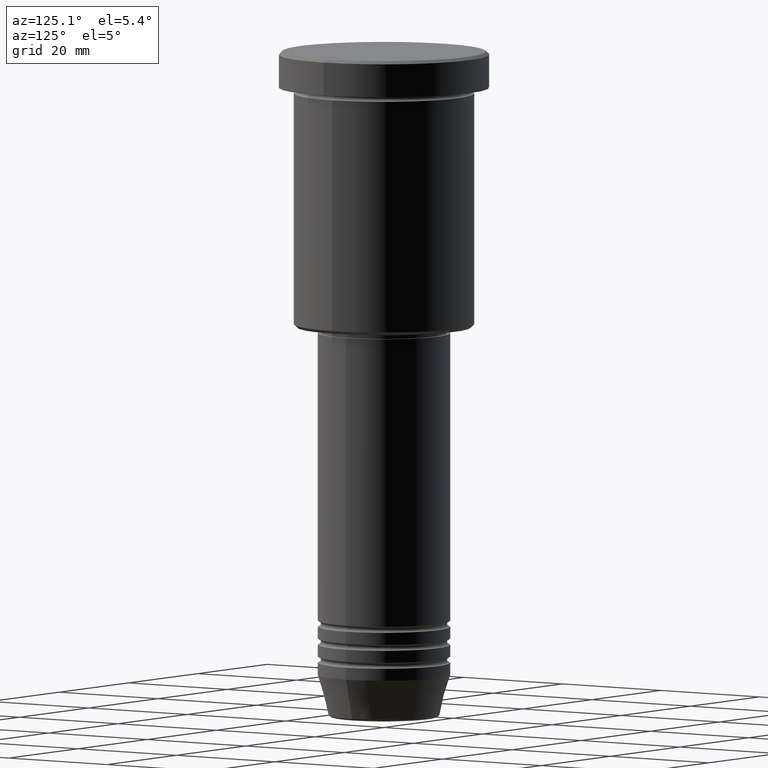
[diagram: clean part render]
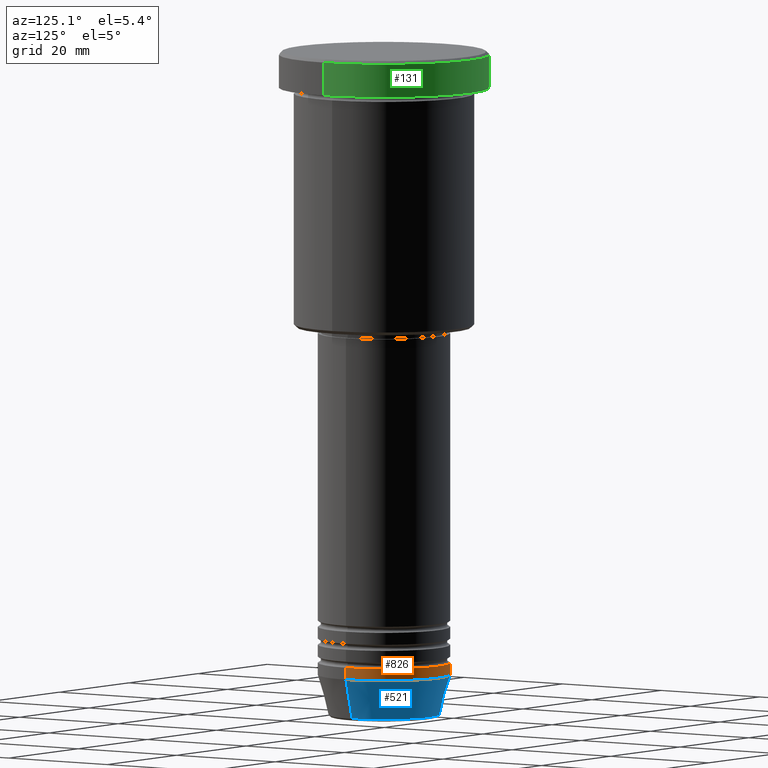
[diagram: same view with three faces highlighted in distinct colors, each labeled with its STEP entity id]
A machine part, auxiliary view with three faces highlighted in distinct colors.
Their STEP definitions:

[orange] entity #826 — the highlighted cylindrical surface (partial cylindrical patch) has radius 11 mm, axis along (-0, -0, 1).
#23 = EDGE_CURVE ( 'NONE', #1073, #740, #418, .T. ) ;
#35 = LINE ( 'NONE', #148, #1058 ) ;
#40 = CARTESIAN_POINT ( 'NONE',  ( 0.000000000000000000, 0.000000000000000000, -102.0000000000000142 ) ) ;
#46 = CIRCLE ( 'NONE', #140, 11.00000000000000000 ) ;
#74 = DIRECTION ( 'NONE',  ( -0.000000000000000000, -0.000000000000000000, 1.000000000000000000 ) ) ;
#135 = DIRECTION ( 'NONE',  ( 1.000000000000000000, 0.000000000000000000, 0.000000000000000000 ) ) ;
#140 = AXIS2_PLACEMENT_3D ( 'NONE', #40, #976, #968 ) ;
#148 = CARTESIAN_POINT ( 'NONE',  ( -11.00000000000000000, 1.347111479062088405E-15, 0.000000000000000000 ) ) ;
#183 = ORIENTED_EDGE ( 'NONE', *, *, #325, .F. ) ;
#287 = AXIS2_PLACEMENT_3D ( 'NONE', #701, #74, #135 ) ;
#305 = AXIS2_PLACEMENT_3D ( 'NONE', #356, #546, #615 ) ;
#314 = CARTESIAN_POINT ( 'NONE',  ( 11.00000000000000000, 0.000000000000000000, -104.0000000000000142 ) ) ;
#325 = EDGE_CURVE ( 'NONE', #740, #942, #46, .T. ) ;
#332 = EDGE_CURVE ( 'NONE', #446, #942, #35, .T. ) ;
#337 = CYLINDRICAL_SURFACE ( 'NONE', #287, 11.00000000000000000 ) ;
#342 = CARTESIAN_POINT ( 'NONE',  ( 11.00000000000000000, 0.000000000000000000, 0.000000000000000000 ) ) ;
#356 = CARTESIAN_POINT ( 'NONE',  ( 0.000000000000000000, 0.000000000000000000, -104.0000000000000142 ) ) ;
#412 = ORIENTED_EDGE ( 'NONE', *, *, #332, .T. ) ;
#418 = LINE ( 'NONE', #342, #633 ) ;
#446 = VERTEX_POINT ( 'NONE', #969 ) ;
#449 = EDGE_LOOP ( 'NONE', ( #1143, #412, #183, #1100 ) ) ;
#510 = DIRECTION ( 'NONE',  ( -0.000000000000000000, -0.000000000000000000, 1.000000000000000000 ) ) ;
#546 = DIRECTION ( 'NONE',  ( -0.000000000000000000, -0.000000000000000000, 1.000000000000000000 ) ) ;
#615 = DIRECTION ( 'NONE',  ( 1.000000000000000000, 0.000000000000000000, 0.000000000000000000 ) ) ;
#628 = CARTESIAN_POINT ( 'NONE',  ( 11.00000000000000000, 0.000000000000000000, -102.0000000000000142 ) ) ;
#633 = VECTOR ( 'NONE', #794, 1000.000000000000000 ) ;
#673 = CIRCLE ( 'NONE', #305, 11.00000000000000000 ) ;
#701 = CARTESIAN_POINT ( 'NONE',  ( 0.000000000000000000, 0.000000000000000000, 0.000000000000000000 ) ) ;
#740 = VERTEX_POINT ( 'NONE', #628 ) ;
#744 = EDGE_CURVE ( 'NONE', #1073, #446, #673, .T. ) ;
#794 = DIRECTION ( 'NONE',  ( -0.000000000000000000, -0.000000000000000000, 1.000000000000000000 ) ) ;
#826 = ADVANCED_FACE ( 'NONE', ( #1166 ), #337, .T. ) ;
#942 = VERTEX_POINT ( 'NONE', #1022 ) ;
#968 = DIRECTION ( 'NONE',  ( 1.000000000000000000, 0.000000000000000000, 0.000000000000000000 ) ) ;
#969 = CARTESIAN_POINT ( 'NONE',  ( -11.00000000000000000, 1.347111479062088405E-15, -104.0000000000000142 ) ) ;
#976 = DIRECTION ( 'NONE',  ( -0.000000000000000000, -0.000000000000000000, 1.000000000000000000 ) ) ;
#1022 = CARTESIAN_POINT ( 'NONE',  ( -11.00000000000000000, 1.347111479062088405E-15, -102.0000000000000142 ) ) ;
#1058 = VECTOR ( 'NONE', #510, 1000.000000000000000 ) ;
#1073 = VERTEX_POINT ( 'NONE', #314 ) ;
#1100 = ORIENTED_EDGE ( 'NONE', *, *, #23, .F. ) ;
#1143 = ORIENTED_EDGE ( 'NONE', *, *, #744, .T. ) ;
#1166 = FACE_OUTER_BOUND ( 'NONE', #449, .T. ) ;

[blue] entity #521 — the highlighted conical surface has half-angle 15 deg.
#42 = EDGE_CURVE ( 'NONE', #753, #446, #1178, .T. ) ;
#58 = DIRECTION ( 'NONE',  ( 0.2588190451025213501, 0.000000000000000000, 0.9659258262890680902 ) ) ;
#122 = VECTOR ( 'NONE', #330, 1000.000000000000000 ) ;
#167 = CARTESIAN_POINT ( 'NONE',  ( 0.000000000000000000, 0.000000000000000000, -110.6294095225512564 ) ) ;
#195 = CARTESIAN_POINT ( 'NONE',  ( 0.000000000000000000, 0.000000000000000000, -104.0000000000000142 ) ) ;
#218 = LINE ( 'NONE', #953, #1043 ) ;
#227 = EDGE_CURVE ( 'NONE', #1133, #1073, #218, .T. ) ;
#305 = AXIS2_PLACEMENT_3D ( 'NONE', #356, #546, #615 ) ;
#314 = CARTESIAN_POINT ( 'NONE',  ( 11.00000000000000000, 0.000000000000000000, -104.0000000000000142 ) ) ;
#321 = FACE_OUTER_BOUND ( 'NONE', #613, .T. ) ;
#323 = CIRCLE ( 'NONE', #913, 9.223655072137191269 ) ;
#330 = DIRECTION ( 'NONE',  ( -0.2588190451025213501, 3.169619151431772337E-17, 0.9659258262890680902 ) ) ;
#356 = CARTESIAN_POINT ( 'NONE',  ( 0.000000000000000000, 0.000000000000000000, -104.0000000000000142 ) ) ;
#384 = CONICAL_SURFACE ( 'NONE', #538, 11.00000000000000000, 0.2617993877991500740 ) ;
#410 = DIRECTION ( 'NONE',  ( 1.000000000000000000, 0.000000000000000000, 0.000000000000000000 ) ) ;
#444 = ORIENTED_EDGE ( 'NONE', *, *, #227, .F. ) ;
#446 = VERTEX_POINT ( 'NONE', #969 ) ;
#521 = ADVANCED_FACE ( 'NONE', ( #321 ), #384, .T. ) ;
#538 = AXIS2_PLACEMENT_3D ( 'NONE', #195, #904, #410 ) ;
#546 = DIRECTION ( 'NONE',  ( -0.000000000000000000, -0.000000000000000000, 1.000000000000000000 ) ) ;
#613 = EDGE_LOOP ( 'NONE', ( #815, #632, #907, #444 ) ) ;
#615 = DIRECTION ( 'NONE',  ( 1.000000000000000000, 0.000000000000000000, 0.000000000000000000 ) ) ;
#632 = ORIENTED_EDGE ( 'NONE', *, *, #42, .T. ) ;
#673 = CIRCLE ( 'NONE', #305, 11.00000000000000000 ) ;
#714 = CARTESIAN_POINT ( 'NONE',  ( 9.223655072137191269, 0.000000000000000000, -110.6294095225512564 ) ) ;
#744 = EDGE_CURVE ( 'NONE', #1073, #446, #673, .T. ) ;
#753 = VERTEX_POINT ( 'NONE', #1000 ) ;
#765 = EDGE_CURVE ( 'NONE', #1133, #753, #323, .T. ) ;
#815 = ORIENTED_EDGE ( 'NONE', *, *, #765, .T. ) ;
#904 = DIRECTION ( 'NONE',  ( -0.000000000000000000, -0.000000000000000000, 1.000000000000000000 ) ) ;
#905 = DIRECTION ( 'NONE',  ( 1.000000000000000000, 0.000000000000000000, 0.000000000000000000 ) ) ;
#907 = ORIENTED_EDGE ( 'NONE', *, *, #744, .F. ) ;
#913 = AXIS2_PLACEMENT_3D ( 'NONE', #167, #1098, #905 ) ;
#953 = CARTESIAN_POINT ( 'NONE',  ( 11.00000000000000000, 0.000000000000000000, -104.0000000000000142 ) ) ;
#969 = CARTESIAN_POINT ( 'NONE',  ( -11.00000000000000000, 1.347111479062088405E-15, -104.0000000000000142 ) ) ;
#1000 = CARTESIAN_POINT ( 'NONE',  ( -9.223655072137191269, 1.238341722557647202E-15, -110.6294095225512564 ) ) ;
#1043 = VECTOR ( 'NONE', #58, 1000.000000000000000 ) ;
#1073 = VERTEX_POINT ( 'NONE', #314 ) ;
#1098 = DIRECTION ( 'NONE',  ( -0.000000000000000000, -0.000000000000000000, 1.000000000000000000 ) ) ;
#1133 = VERTEX_POINT ( 'NONE', #714 ) ;
#1161 = CARTESIAN_POINT ( 'NONE',  ( -11.00000000000000000, 1.347111479062088405E-15, -104.0000000000000142 ) ) ;
#1178 = LINE ( 'NONE', #1161, #122 ) ;

[green] entity #131 — the highlighted cylindrical surface (partial cylindrical patch) has radius 17.5 mm, axis along (-0, -0, 1).
#5 = LINE ( 'NONE', #838, #830 ) ;
#14 = DIRECTION ( 'NONE',  ( 1.000000000000000000, 0.000000000000000000, 0.000000000000000000 ) ) ;
#21 = DIRECTION ( 'NONE',  ( -0.000000000000000000, -0.000000000000000000, 1.000000000000000000 ) ) ;
#24 = CARTESIAN_POINT ( 'NONE',  ( -17.50000000000000000, 2.143131898507868248E-15, -0.5000000000000281997 ) ) ;
#73 = ORIENTED_EDGE ( 'NONE', *, *, #808, .T. ) ;
#75 = VERTEX_POINT ( 'NONE', #237 ) ;
#82 = AXIS2_PLACEMENT_3D ( 'NONE', #1078, #645, #1180 ) ;
#93 = VERTEX_POINT ( 'NONE', #941 ) ;
#108 = DIRECTION ( 'NONE',  ( -0.000000000000000000, -0.000000000000000000, 1.000000000000000000 ) ) ;
#131 = ADVANCED_FACE ( 'NONE', ( #746 ), #1126, .T. ) ;
#191 = VERTEX_POINT ( 'NONE', #24 ) ;
#207 = EDGE_CURVE ( 'NONE', #850, #75, #1026, .T. ) ;
#217 = EDGE_CURVE ( 'NONE', #93, #191, #5, .T. ) ;
#237 = CARTESIAN_POINT ( 'NONE',  ( 17.50000000000000000, 0.000000000000000000, -0.5000000000000281997 ) ) ;
#277 = CARTESIAN_POINT ( 'NONE',  ( 0.000000000000000000, 0.000000000000000000, 0.000000000000000000 ) ) ;
#326 = ORIENTED_EDGE ( 'NONE', *, *, #583, .T. ) ;
#331 = DIRECTION ( 'NONE',  ( 1.000000000000000000, 0.000000000000000000, 0.000000000000000000 ) ) ;
#452 = CARTESIAN_POINT ( 'NONE',  ( 0.000000000000000000, 0.000000000000000000, -5.999999999999995559 ) ) ;
#533 = EDGE_LOOP ( 'NONE', ( #73, #1069, #326, #574 ) ) ;
#535 = AXIS2_PLACEMENT_3D ( 'NONE', #277, #108, #14 ) ;
#574 = ORIENTED_EDGE ( 'NONE', *, *, #207, .F. ) ;
#583 = EDGE_CURVE ( 'NONE', #191, #75, #591, .T. ) ;
#591 = CIRCLE ( 'NONE', #82, 17.50000000000000000 ) ;
#645 = DIRECTION ( 'NONE',  ( 0.000000000000000000, 0.000000000000000000, -1.000000000000000000 ) ) ;
#671 = AXIS2_PLACEMENT_3D ( 'NONE', #452, #717, #331 ) ;
#717 = DIRECTION ( 'NONE',  ( -0.000000000000000000, -0.000000000000000000, 1.000000000000000000 ) ) ;
#728 = VECTOR ( 'NONE', #823, 1000.000000000000000 ) ;
#746 = FACE_OUTER_BOUND ( 'NONE', #533, .T. ) ;
#808 = EDGE_CURVE ( 'NONE', #850, #93, #888, .T. ) ;
#823 = DIRECTION ( 'NONE',  ( -0.000000000000000000, -0.000000000000000000, 1.000000000000000000 ) ) ;
#830 = VECTOR ( 'NONE', #21, 1000.000000000000000 ) ;
#838 = CARTESIAN_POINT ( 'NONE',  ( -17.50000000000000000, 2.143131898507868248E-15, 0.000000000000000000 ) ) ;
#850 = VERTEX_POINT ( 'NONE', #858 ) ;
#858 = CARTESIAN_POINT ( 'NONE',  ( 17.50000000000000000, 0.000000000000000000, -5.999999999999995559 ) ) ;
#888 = CIRCLE ( 'NONE', #671, 17.50000000000000000 ) ;
#941 = CARTESIAN_POINT ( 'NONE',  ( -17.50000000000000000, 2.143131898507868248E-15, -5.999999999999995559 ) ) ;
#1026 = LINE ( 'NONE', #1040, #728 ) ;
#1040 = CARTESIAN_POINT ( 'NONE',  ( 17.50000000000000000, 0.000000000000000000, 0.000000000000000000 ) ) ;
#1069 = ORIENTED_EDGE ( 'NONE', *, *, #217, .T. ) ;
#1078 = CARTESIAN_POINT ( 'NONE',  ( 0.000000000000000000, 0.000000000000000000, -0.5000000000000281997 ) ) ;
#1126 = CYLINDRICAL_SURFACE ( 'NONE', #535, 17.50000000000000000 ) ;
#1180 = DIRECTION ( 'NONE',  ( 1.000000000000000000, 0.000000000000000000, 0.000000000000000000 ) ) ;